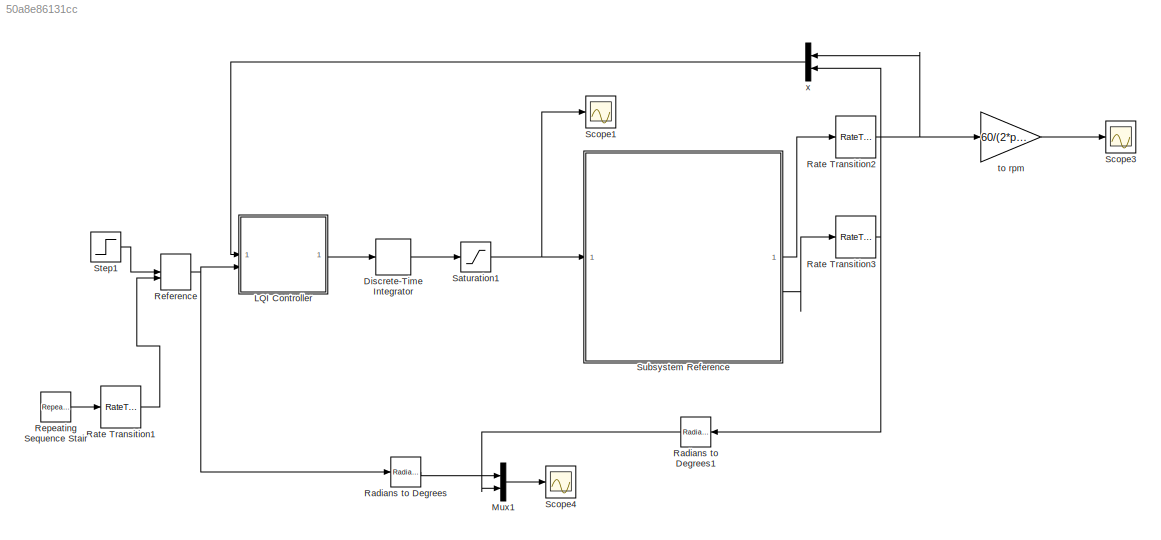
MODEL slx_50a8e86131cc
KIND model
CONFIG AbsTol = auto
CONFIG EnableMultiTasking = on
CONFIG FixedStep = auto
CONFIG MaxStep = auto
CONFIG MinStep = auto
CONFIG RelTol = 1e-5
CONFIG SampleTimeConstraint = Unconstrained
CONFIG SolverName = FixedStepAuto
CONFIG StartTime = 0.0
CONFIG StopTime = 10
BLOCK [DiscreteIntegrator] Discrete-Time Integrator
  ICPrevOutput = DiscIntNeverNeededParam
  ICPrevScaledInput = DiscIntNeverNeededParam
  InitialConditionSetting = Auto
  IntegratorMethod = Accumulation: Backward Euler
  LimitOutput = on
  LowerSaturationLimit = -12
  SampleTime = -1
  UpperSaturationLimit = 12
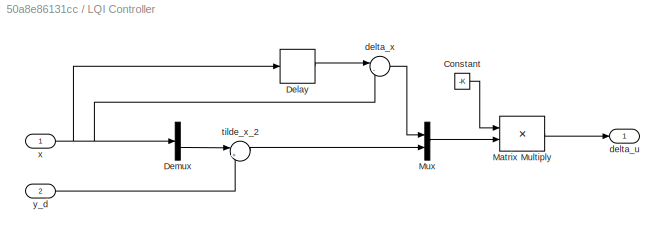
BLOCK [SubSystem] LQI Controller
BLOCK [Constant] LQI Controller/Constant
  Value = -K
  VectorParams1D = off
BLOCK [Delay] LQI Controller/Delay
  DelayLength = 1
  InitialCondition = [0;0]
  InputPortMap = u0
  SampleTime = Ts
BLOCK [Demux] LQI Controller/Demux
  Outputs = 2
BLOCK [Product] LQI Controller/Matrix Multiply
  Multiplication = Matrix(*)
BLOCK [Mux] LQI Controller/Mux
  DisplayOption = bar
  Inputs = 2
BLOCK [Outport] LQI Controller/delta_u
  SampleTime = Ts
BLOCK [Sum] LQI Controller/delta_x
  Inputs = |-+
  NameLocation = top
BLOCK [Sum] LQI Controller/tilde_x_2
  Inputs = |+-
  NameLocation = top
BLOCK [Inport] LQI Controller/x
  SampleTime = Ts
BLOCK [Inport] LQI Controller/y_d
  Port = 2
  SampleTime = Ts
BLOCK [Mux] Mux1
  DisplayOption = bar
  Inputs = 2
BLOCK [Reference] Radians to Degrees  REF=simulink_extras/Transformations/Radians
to Degrees
  SourceBlock = simulink_extras/Transformations/Radians\nto Degrees
  SourceType = RadiansToDegrees
BLOCK [Reference] Radians to Degrees1  REF=simulink_extras/Transformations/Radians
to Degrees
  NameLocation = top
  SourceBlock = simulink_extras/Transformations/Radians\nto Degrees
  SourceType = RadiansToDegrees
BLOCK [RateTransition] Rate Transition1
BLOCK [RateTransition] Rate Transition2
  OutPortSampleTime = Ts
BLOCK [RateTransition] Rate Transition3
  OutPortSampleTime = Ts
BLOCK [ManualSwitch] Reference
BLOCK [Reference] Repeating Sequence Stair  REF=simulink/Sources/Repeating
Sequence
Stair
  SourceBlock = simulink/Sources/Repeating\nSequence\nStair
  SourceType = Repeating Sequence Stair
BLOCK [Saturate] Saturation1
  LowerLimit = -12
  UpperLimit = 12
BLOCK [Scope] Scope1
  Floating = off
  NumInputPorts = 1
  ScopeSpecificationString = Simulink.scopes.TimeScopeBlockCfg('CurrentConfiguration', extmgr.ConfigurationSet(extmgr.Configuration('Core','General UI',true),extmgr.Configuration('Core','Source UI',true),extmgr.Configuration('Sources','WiredSimulink',true,'DataLoggingVariableName','ScopeData1'),extmgr.Configuration('Visuals','Time Domain',true,'SerializedDisplays',{struct('MinYLimReal','-1.25775','MaxYLimReal','13.47308','YLa...<+1474ch>
BLOCK [Scope] Scope3
  Floating = off
  NumInputPorts = 1
  ScopeSpecificationString = Simulink.scopes.TimeScopeBlockCfg('CurrentConfiguration', extmgr.ConfigurationSet(extmgr.Configuration('Core','General UI',true),extmgr.Configuration('Core','Source UI',true),extmgr.Configuration('Sources','WiredSimulink',true,'DataLoggingVariableName','ScopeData1'),extmgr.Configuration('Visuals','Time Domain',true,'TimeAxisLabels','All','SerializedDisplays',{struct('MinYLimReal','-10.15981','MaxY...<+1755ch>
BLOCK [Scope] Scope4
  Floating = off
  NumInputPorts = 1
  ScopeSpecificationString = Simulink.scopes.TimeScopeBlockCfg('CurrentConfiguration', extmgr.ConfigurationSet(extmgr.Configuration('Core','General UI',true),extmgr.Configuration('Core','Source UI',true),extmgr.Configuration('Sources','WiredSimulink',true,'DataLoggingVariableName','ScopeData2'),extmgr.Configuration('Visuals','Time Domain',true,'TimeAxisLabels','All','SerializedDisplays',{struct('MinYLimReal','-23.76919','MaxY...<+1765ch>
BLOCK [Step] Step1
  After = pi
  SampleTime = Ts
  Time = 0
BLOCK [SubSystem] Subsystem Reference
  ReferencedSubsystem = pololu_37D_hardware_interface
  Ts = Ts
  pwmFreq = 2000
BLOCK [Gain] to rpm
  Gain = 60/(2*pi)
BLOCK [Mux] x
  DisplayOption = bar
  Inputs = 2
  NameLocation = top
LINE Discrete-Time Integrator:1 -> Saturation1:1
LINE LQI Controller/Constant:1 -> LQI Controller/Matrix Multiply:1
LINE LQI Controller/Delay:1 -> LQI Controller/delta_x:1
LINE LQI Controller/Demux:2 -> LQI Controller/tilde_x_2:1
LINE LQI Controller/Matrix Multiply:1 -> LQI Controller/delta_u:1
LINE LQI Controller/Mux:1 -> LQI Controller/Matrix Multiply:2
LINE LQI Controller/delta_x:1 -> LQI Controller/Mux:1
LINE LQI Controller/tilde_x_2:1 -> LQI Controller/Mux:2
NET LQI Controller/x:1 -> LQI Controller/Delay:1, LQI Controller/Demux:1, LQI Controller/delta_x:2
LINE LQI Controller/y_d:1 -> LQI Controller/tilde_x_2:2
LINE LQI Controller:1 -> Discrete-Time Integrator:1
LINE Mux1:1 -> Scope4:1
LINE Radians to Degrees1:1 -> Mux1:2
LINE Radians to Degrees:1 -> Mux1:1
LINE Rate Transition1:1 -> Reference:2
NET Rate Transition2:1 -> to rpm:1, x:1
NET Rate Transition3:1 -> Radians to Degrees1:1, x:2
NET Reference:1 -> LQI Controller:2, Radians to Degrees:1
LINE Repeating Sequence Stair:1 -> Rate Transition1:1
NET Saturation1:1 -> Scope1:1, Subsystem Reference:1
LINE Step1:1 -> Reference:1
LINE Subsystem Reference:1 -> Rate Transition2:1
LINE Subsystem Reference:2 -> Rate Transition3:1
LINE to rpm:1 -> Scope3:1
LINE x:1 -> LQI Controller:1
note: NET lines group one-source signal fan-out (src -> all destinations, sorted); 1:1 wires keep LINE
